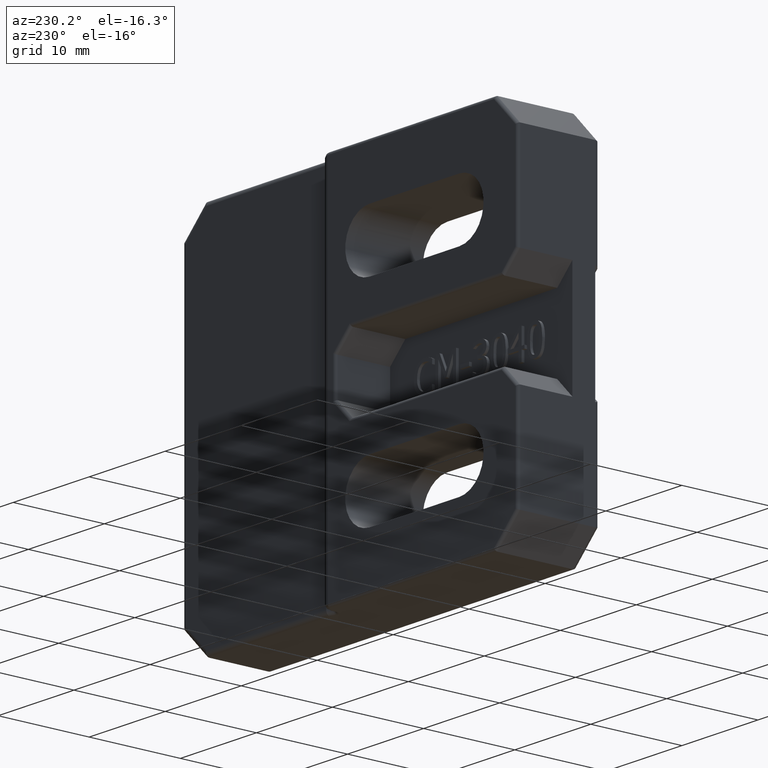
[diagram: clean part render]
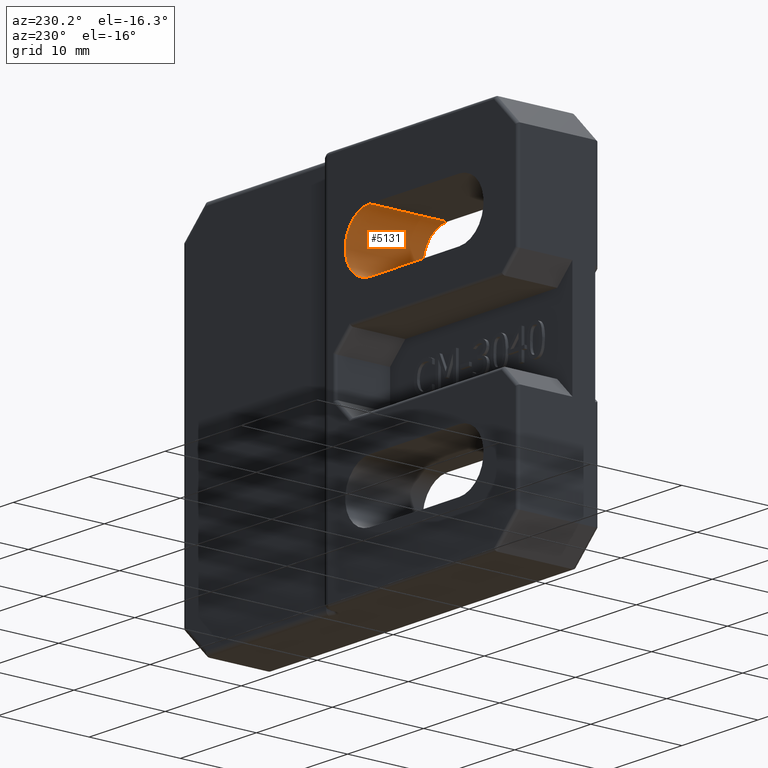
[diagram: same view with one face highlighted and labeled with its STEP entity id]
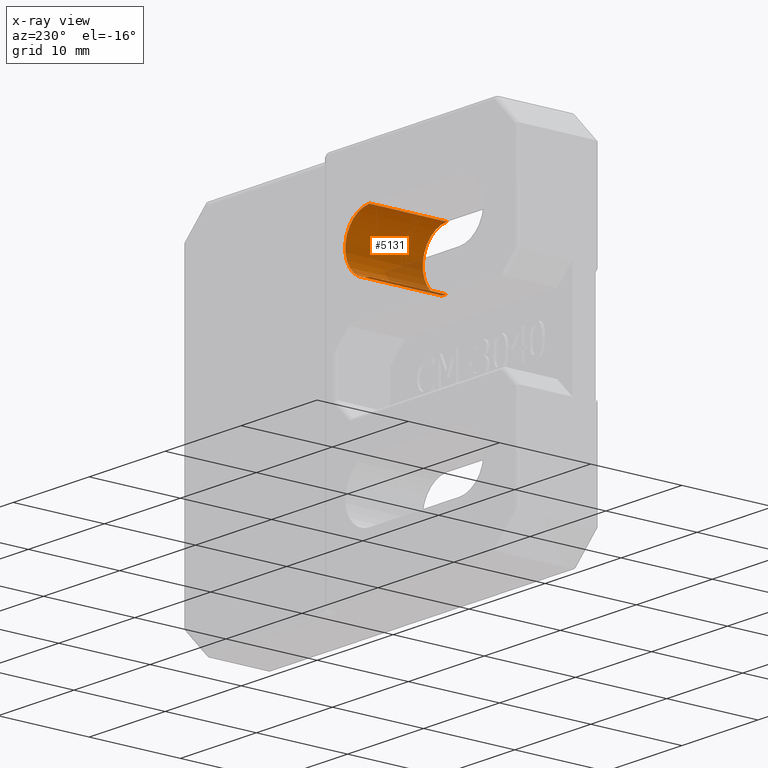
[diagram: x-ray of the same camera — body ghosted, the highlighted face saturated]
A machine part, auxiliary view. The second image highlights one B-rep face of the part: STEP entity #5131.
The next image is the same camera in x-ray: the body ghosted, the highlighted face saturated — about 15% of this face is hidden behind the body in this view.
In plain terms, the highlighted cylindrical surface (partial cylindrical patch) has radius 3.2 mm, axis along (0, -1, 0).
Its self-contained STEP definition (entity closure, byte-faithful):
#892=LINE('',#8959,#1409);
#903=LINE('',#8985,#1420);
#1409=VECTOR('',#6511,8.5);
#1420=VECTOR('',#6552,8.5);
#1526=CYLINDRICAL_SURFACE('',#5453,3.2);
#1795=FACE_OUTER_BOUND('',#2100,.T.);
#2100=EDGE_LOOP('',(#4753,#4754,#4755,#4756));
#2161=CIRCLE('',#5326,3.2);
#2175=CIRCLE('',#5427,3.2);
#2480=VERTEX_POINT('',#8513);
#2481=VERTEX_POINT('',#8515);
#2609=VERTEX_POINT('',#8923);
#2611=VERTEX_POINT('',#8927);
#3110=EDGE_CURVE('',#2480,#2481,#2161,.T.);
#3312=EDGE_CURVE('',#2609,#2611,#2175,.T.);
#3327=EDGE_CURVE('',#2480,#2609,#892,.T.);
#3338=EDGE_CURVE('',#2481,#2611,#903,.T.);
#4753=ORIENTED_EDGE('',*,*,#3312,.T.);
#4754=ORIENTED_EDGE('',*,*,#3338,.F.);
#4755=ORIENTED_EDGE('',*,*,#3110,.F.);
#4756=ORIENTED_EDGE('',*,*,#3327,.T.);
#5131=ADVANCED_FACE('',(#1795),#1526,.F.);
#5326=AXIS2_PLACEMENT_3D('',#8516,#6105,#6106);
#5427=AXIS2_PLACEMENT_3D('',#8929,#6477,#6478);
#5453=AXIS2_PLACEMENT_3D('',#8984,#6550,#6551);
#6105=DIRECTION('center_axis',(8.5401771125012E-17,-1.,0.));
#6106=DIRECTION('ref_axis',(0.,0.,1.));
#6477=DIRECTION('center_axis',(1.11022302462516E-16,-1.,0.));
#6478=DIRECTION('ref_axis',(0.,0.,1.));
#6511=DIRECTION('',(1.64477485129653E-16,-1.,0.));
#6550=DIRECTION('center_axis',(1.64477485129653E-16,-1.,0.));
#6551=DIRECTION('ref_axis',(0.,0.,1.));
#6552=DIRECTION('',(1.64477485129653E-16,-1.,0.));
#8513=CARTESIAN_POINT('',(19.5,9.,7.8));
#8515=CARTESIAN_POINT('',(19.5,9.,14.2));
#8516=CARTESIAN_POINT('Origin',(19.5,9.,11.));
#8923=CARTESIAN_POINT('',(19.5,0.500000000000004,7.8));
#8927=CARTESIAN_POINT('',(19.5,0.500000000000004,14.2));
#8929=CARTESIAN_POINT('Origin',(19.5,0.500000000000004,11.));
#8959=CARTESIAN_POINT('',(19.5,9.,7.8));
#8984=CARTESIAN_POINT('Origin',(19.5,9.,11.));
#8985=CARTESIAN_POINT('',(19.5,9.,14.2));